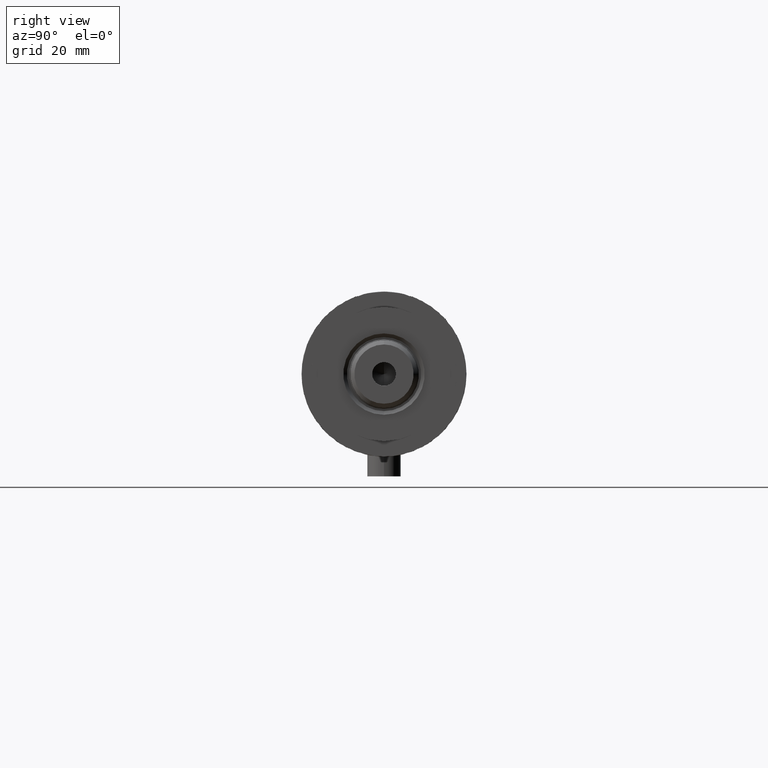
[diagram: clean part render]
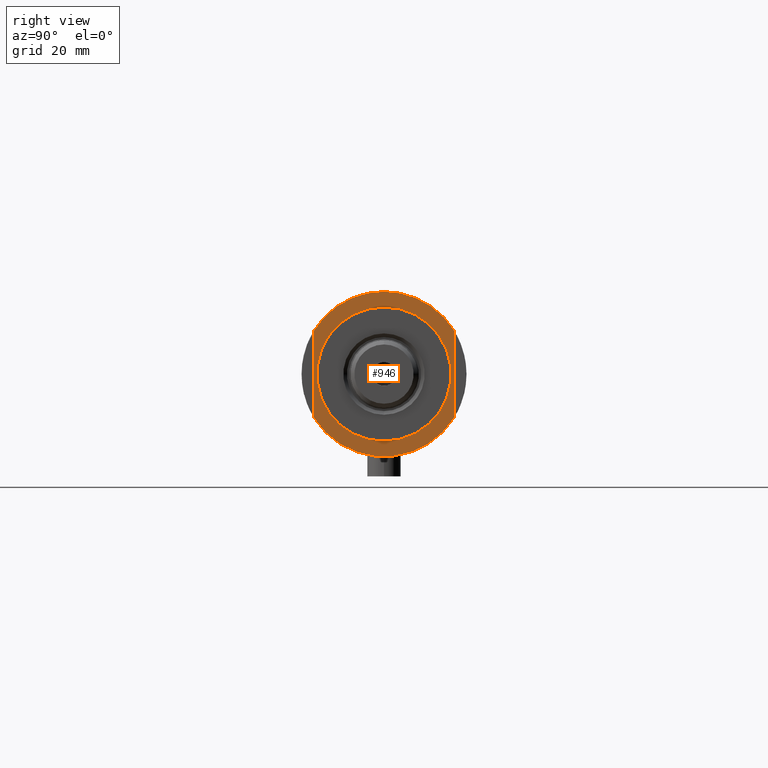
[diagram: same view with one face highlighted and labeled with its STEP entity id]
A machine part, right view. The second image highlights one B-rep face of the part: STEP entity #946.
In plain terms, the highlighted planar face has unit normal (1, 0, -0).
Its self-contained STEP definition (entity closure, byte-faithful):
#62 = CIRCLE ( 'NONE', #2169, 29.50000000000000355 ) ;
#80 = CIRCLE ( 'NONE', #2603, 24.00000000000000000 ) ;
#125 = DIRECTION ( 'NONE',  ( 0.000000000000000000, 0.000000000000000000, 1.000000000000000000 ) ) ;
#163 = CARTESIAN_POINT ( 'NONE',  ( 0.000000000000000000, 0.000000000000000000, 21.00000000000000000 ) ) ;
#265 = DIRECTION ( 'NONE',  ( 0.000000000000000000, 0.000000000000000000, 1.000000000000000000 ) ) ;
#333 = EDGE_CURVE ( 'NONE', #2759, #3910, #62, .T. ) ;
#582 = VECTOR ( 'NONE', #2965, 1000.000000000000000 ) ;
#584 = CARTESIAN_POINT ( 'NONE',  ( -15.66045976336583401, 25.00000000000000000, 21.00000000000000000 ) ) ;
#806 = AXIS2_PLACEMENT_3D ( 'NONE', #1986, #265, #2683 ) ;
#871 = VECTOR ( 'NONE', #3286, 1000.000000000000000 ) ;
#946 = ADVANCED_FACE ( 'NONE', ( #1610, #2971 ), #1207, .T. ) ;
#985 = DIRECTION ( 'NONE',  ( 1.000000000000000000, 0.000000000000000000, 0.000000000000000000 ) ) ;
#1180 = ORIENTED_EDGE ( 'NONE', *, *, #4268, .T. ) ;
#1207 = PLANE ( 'NONE',  #3211 ) ;
#1219 = ORIENTED_EDGE ( 'NONE', *, *, #4328, .T. ) ;
#1244 = EDGE_LOOP ( 'NONE', ( #3509, #1180, #3267, #3434, #1219 ) ) ;
#1270 = CARTESIAN_POINT ( 'NONE',  ( 24.00000000000000000, 0.000000000000000000, 21.00000000000000000 ) ) ;
#1313 = DIRECTION ( 'NONE',  ( 0.000000000000000000, 0.000000000000000000, 1.000000000000000000 ) ) ;
#1342 = DIRECTION ( 'NONE',  ( -0.000000000000000000, -0.000000000000000000, -1.000000000000000000 ) ) ;
#1403 = CARTESIAN_POINT ( 'NONE',  ( -29.50000000000000355, 0.000000000000000000, 21.00000000000000000 ) ) ;
#1498 = ORIENTED_EDGE ( 'NONE', *, *, #2758, .T. ) ;
#1502 = DIRECTION ( 'NONE',  ( 1.000000000000000000, 0.000000000000000000, 0.000000000000000000 ) ) ;
#1604 = LINE ( 'NONE', #3997, #582 ) ;
#1610 = FACE_BOUND ( 'NONE', #2401, .T. ) ;
#1670 = CARTESIAN_POINT ( 'NONE',  ( 0.000000000000000000, 0.000000000000000000, 21.00000000000000000 ) ) ;
#1723 = VERTEX_POINT ( 'NONE', #3319 ) ;
#1778 = VERTEX_POINT ( 'NONE', #2705 ) ;
#1986 = CARTESIAN_POINT ( 'NONE',  ( 0.000000000000000000, 0.000000000000000000, 21.00000000000000000 ) ) ;
#2035 = CARTESIAN_POINT ( 'NONE',  ( -15.66045976336583045, 24.99999999999999645, 21.00000000000000355 ) ) ;
#2071 = DIRECTION ( 'NONE',  ( 1.000000000000000000, 0.000000000000000000, 0.000000000000000000 ) ) ;
#2086 = DIRECTION ( 'NONE',  ( -0.000000000000000000, -0.000000000000000000, -1.000000000000000000 ) ) ;
#2163 = EDGE_CURVE ( 'NONE', #4147, #1778, #4248, .T. ) ;
#2169 = AXIS2_PLACEMENT_3D ( 'NONE', #3475, #125, #1502 ) ;
#2401 = EDGE_LOOP ( 'NONE', ( #3941, #1498 ) ) ;
#2603 = AXIS2_PLACEMENT_3D ( 'NONE', #1670, #1342, #985 ) ;
#2683 = DIRECTION ( 'NONE',  ( 1.000000000000000000, 0.000000000000000000, 0.000000000000000000 ) ) ;
#2705 = CARTESIAN_POINT ( 'NONE',  ( -24.00000000000000000, 2.939152317953647894E-15, 21.00000000000000000 ) ) ;
#2758 = EDGE_CURVE ( 'NONE', #1778, #4147, #80, .T. ) ;
#2759 = VERTEX_POINT ( 'NONE', #2035 ) ;
#2776 = CARTESIAN_POINT ( 'NONE',  ( 0.000000000000000000, 0.000000000000000000, 21.00000000000000000 ) ) ;
#2808 = AXIS2_PLACEMENT_3D ( 'NONE', #2776, #2086, #2821 ) ;
#2821 = DIRECTION ( 'NONE',  ( 1.000000000000000000, 0.000000000000000000, 0.000000000000000000 ) ) ;
#2881 = VERTEX_POINT ( 'NONE', #3158 ) ;
#2908 = CARTESIAN_POINT ( 'NONE',  ( -15.66045976336583045, -24.99999999999999645, 20.99999999999999645 ) ) ;
#2949 = EDGE_CURVE ( 'NONE', #2759, #2881, #2966, .T. ) ;
#2965 = DIRECTION ( 'NONE',  ( -1.000000000000000000, -0.000000000000000000, -0.000000000000000000 ) ) ;
#2966 = LINE ( 'NONE', #584, #871 ) ;
#2971 = FACE_OUTER_BOUND ( 'NONE', #1244, .T. ) ;
#3084 = CIRCLE ( 'NONE', #3382, 29.50000000000000355 ) ;
#3158 = CARTESIAN_POINT ( 'NONE',  ( 15.66045976336583045, 24.99999999999999645, 20.99999999999999645 ) ) ;
#3211 = AXIS2_PLACEMENT_3D ( 'NONE', #163, #4004, #3986 ) ;
#3267 = ORIENTED_EDGE ( 'NONE', *, *, #2949, .F. ) ;
#3286 = DIRECTION ( 'NONE',  ( 1.000000000000000000, 0.000000000000000000, 0.000000000000000000 ) ) ;
#3319 = CARTESIAN_POINT ( 'NONE',  ( 15.66045976336583045, -25.00000000000000000, 21.00000000000000355 ) ) ;
#3382 = AXIS2_PLACEMENT_3D ( 'NONE', #3754, #1313, #2071 ) ;
#3434 = ORIENTED_EDGE ( 'NONE', *, *, #333, .T. ) ;
#3475 = CARTESIAN_POINT ( 'NONE',  ( 0.000000000000000000, 0.000000000000000000, 21.00000000000000000 ) ) ;
#3509 = ORIENTED_EDGE ( 'NONE', *, *, #3860, .F. ) ;
#3749 = CIRCLE ( 'NONE', #806, 29.50000000000000355 ) ;
#3754 = CARTESIAN_POINT ( 'NONE',  ( 0.000000000000000000, 0.000000000000000000, 21.00000000000000000 ) ) ;
#3860 = EDGE_CURVE ( 'NONE', #1723, #4032, #1604, .T. ) ;
#3910 = VERTEX_POINT ( 'NONE', #1403 ) ;
#3941 = ORIENTED_EDGE ( 'NONE', *, *, #2163, .T. ) ;
#3986 = DIRECTION ( 'NONE',  ( 1.000000000000000000, 0.000000000000000000, -0.000000000000000000 ) ) ;
#3997 = CARTESIAN_POINT ( 'NONE',  ( -15.66045976336583401, -25.00000000000000000, 21.00000000000000000 ) ) ;
#4004 = DIRECTION ( 'NONE',  ( 0.000000000000000000, 0.000000000000000000, 1.000000000000000000 ) ) ;
#4032 = VERTEX_POINT ( 'NONE', #2908 ) ;
#4147 = VERTEX_POINT ( 'NONE', #1270 ) ;
#4248 = CIRCLE ( 'NONE', #2808, 24.00000000000000000 ) ;
#4268 = EDGE_CURVE ( 'NONE', #1723, #2881, #3084, .T. ) ;
#4328 = EDGE_CURVE ( 'NONE', #3910, #4032, #3749, .T. ) ;